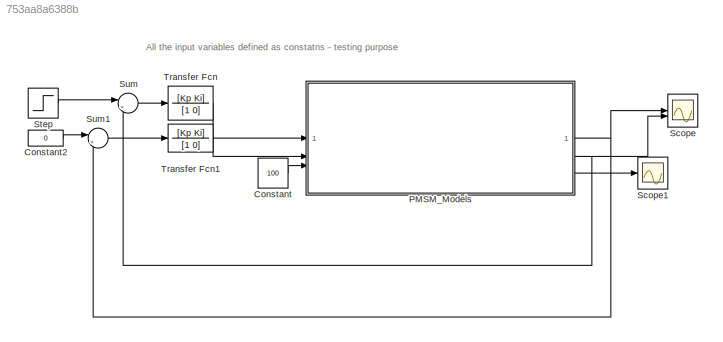
MODEL slx_753aa8a6388b
KIND model
CONFIG AbsTol = auto
CONFIG EnableMultiTasking = off
CONFIG FixedStep = 1e-4
CONFIG MaxStep = auto
CONFIG MinStep = auto
CONFIG RelTol = 1e-3
CONFIG SampleTimeConstraint = Unconstrained
CONFIG SolverName = ode4
CONFIG StartTime = 0.0
CONFIG StopTime = 2
BLOCK [Constant] Constant
  Value = 100
BLOCK [Constant] Constant2
  Value = 0
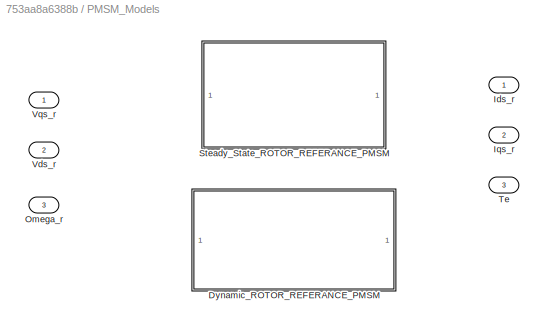
BLOCK [SubSystem] PMSM_Models
  Variant = on
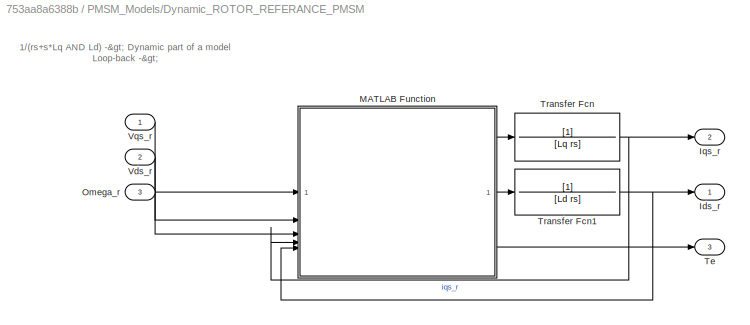
BLOCK [SubSystem] PMSM_Models/Dynamic_ROTOR_REFERANCE_PMSM
  VariantControl = Model==2
BLOCK [Outport] PMSM_Models/Dynamic_ROTOR_REFERANCE_PMSM/Ids_r
BLOCK [Outport] PMSM_Models/Dynamic_ROTOR_REFERANCE_PMSM/Iqs_r
  Port = 2
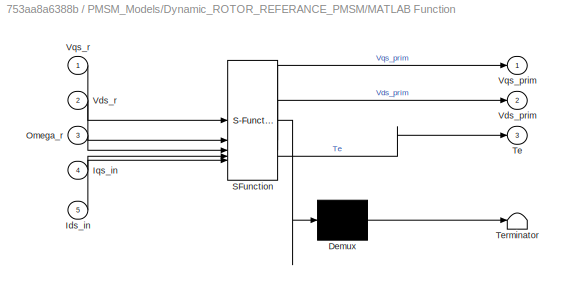
BLOCK [SubSystem] PMSM_Models/Dynamic_ROTOR_REFERANCE_PMSM/MATLAB Function
  ErrorFcn = Stateflow.Translate.translate
  PermitHierarchicalResolution = ExplicitOnly
  SFBlockType = MATLAB Function
  TreatAsAtomicUnit = on
BLOCK [Demux] PMSM_Models/Dynamic_ROTOR_REFERANCE_PMSM/MATLAB Function/ Demux 
  Outputs = 1
BLOCK [S-Function] PMSM_Models/Dynamic_ROTOR_REFERANCE_PMSM/MATLAB Function/ SFunction 
  EnableBusSupport = off
  FunctionName = sf_sfun
  PortCounts = [5 4]
  SFcnIsStateOwnerBlock = off
  SFunctionDeploymentMode = off
  Tag = Stateflow S-Function 2
BLOCK [Terminator] PMSM_Models/Dynamic_ROTOR_REFERANCE_PMSM/MATLAB Function/ Terminator 
BLOCK [Inport] PMSM_Models/Dynamic_ROTOR_REFERANCE_PMSM/MATLAB Function/Ids_in
  Port = 5
BLOCK [Inport] PMSM_Models/Dynamic_ROTOR_REFERANCE_PMSM/MATLAB Function/Iqs_in
  Port = 4
BLOCK [Inport] PMSM_Models/Dynamic_ROTOR_REFERANCE_PMSM/MATLAB Function/Omega_r
  Port = 3
BLOCK [Outport] PMSM_Models/Dynamic_ROTOR_REFERANCE_PMSM/MATLAB Function/Te
  Port = 3
BLOCK [Outport] PMSM_Models/Dynamic_ROTOR_REFERANCE_PMSM/MATLAB Function/Vds_prim
  Port = 2
BLOCK [Inport] PMSM_Models/Dynamic_ROTOR_REFERANCE_PMSM/MATLAB Function/Vds_r
  Port = 2
BLOCK [Outport] PMSM_Models/Dynamic_ROTOR_REFERANCE_PMSM/MATLAB Function/Vqs_prim
BLOCK [Inport] PMSM_Models/Dynamic_ROTOR_REFERANCE_PMSM/MATLAB Function/Vqs_r
BLOCK [Inport] PMSM_Models/Dynamic_ROTOR_REFERANCE_PMSM/Omega_r
  Port = 3
BLOCK [Outport] PMSM_Models/Dynamic_ROTOR_REFERANCE_PMSM/Te
  Port = 3
BLOCK [TransferFcn] PMSM_Models/Dynamic_ROTOR_REFERANCE_PMSM/Transfer Fcn
  Denominator = [Lq rs]
BLOCK [TransferFcn] PMSM_Models/Dynamic_ROTOR_REFERANCE_PMSM/Transfer Fcn1
  Denominator = [Ld rs]
BLOCK [Inport] PMSM_Models/Dynamic_ROTOR_REFERANCE_PMSM/Vds_r
  Port = 2
BLOCK [Inport] PMSM_Models/Dynamic_ROTOR_REFERANCE_PMSM/Vqs_r
BLOCK [Outport] PMSM_Models/Ids_r
BLOCK [Outport] PMSM_Models/Iqs_r
  Port = 2
BLOCK [Inport] PMSM_Models/Omega_r
  Port = 3
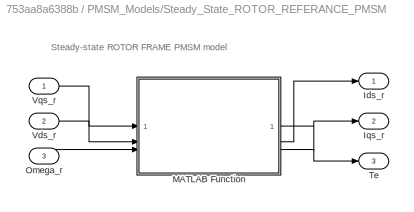
BLOCK [SubSystem] PMSM_Models/Steady_State_ROTOR_REFERANCE_PMSM
  VariantControl = Model==1
BLOCK [Outport] PMSM_Models/Steady_State_ROTOR_REFERANCE_PMSM/Ids_r
BLOCK [Outport] PMSM_Models/Steady_State_ROTOR_REFERANCE_PMSM/Iqs_r
  Port = 2
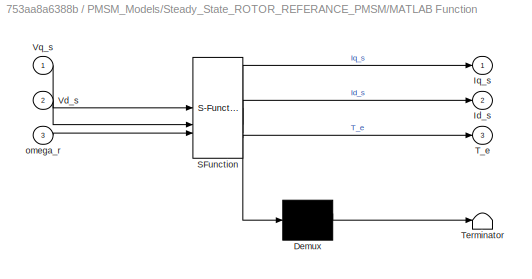
BLOCK [SubSystem] PMSM_Models/Steady_State_ROTOR_REFERANCE_PMSM/MATLAB Function
  ErrorFcn = Stateflow.Translate.translate
  PermitHierarchicalResolution = ExplicitOnly
  SFBlockType = MATLAB Function
  TreatAsAtomicUnit = on
BLOCK [Demux] PMSM_Models/Steady_State_ROTOR_REFERANCE_PMSM/MATLAB Function/ Demux 
  Outputs = 1
BLOCK [S-Function] PMSM_Models/Steady_State_ROTOR_REFERANCE_PMSM/MATLAB Function/ SFunction 
  EnableBusSupport = on
  FunctionName = sf_sfun
  PortCounts = [3 4]
  SFcnIsStateOwnerBlock = off
  SFunctionDeploymentMode = off
  Tag = Stateflow S-Function 4
BLOCK [Terminator] PMSM_Models/Steady_State_ROTOR_REFERANCE_PMSM/MATLAB Function/ Terminator 
BLOCK [Outport] PMSM_Models/Steady_State_ROTOR_REFERANCE_PMSM/MATLAB Function/Id_s
  Port = 2
BLOCK [Outport] PMSM_Models/Steady_State_ROTOR_REFERANCE_PMSM/MATLAB Function/Iq_s
BLOCK [Outport] PMSM_Models/Steady_State_ROTOR_REFERANCE_PMSM/MATLAB Function/T_e
  Port = 3
BLOCK [Inport] PMSM_Models/Steady_State_ROTOR_REFERANCE_PMSM/MATLAB Function/Vd_s
  Port = 2
BLOCK [Inport] PMSM_Models/Steady_State_ROTOR_REFERANCE_PMSM/MATLAB Function/Vq_s
BLOCK [Inport] PMSM_Models/Steady_State_ROTOR_REFERANCE_PMSM/MATLAB Function/omega_r
  Port = 3
BLOCK [Inport] PMSM_Models/Steady_State_ROTOR_REFERANCE_PMSM/Omega_r
  Port = 3
BLOCK [Outport] PMSM_Models/Steady_State_ROTOR_REFERANCE_PMSM/Te
  Port = 3
BLOCK [Inport] PMSM_Models/Steady_State_ROTOR_REFERANCE_PMSM/Vds_r
  Port = 2
BLOCK [Inport] PMSM_Models/Steady_State_ROTOR_REFERANCE_PMSM/Vqs_r
BLOCK [Outport] PMSM_Models/Te
  Port = 3
BLOCK [Inport] PMSM_Models/Vds_r
  Port = 2
BLOCK [Inport] PMSM_Models/Vqs_r
BLOCK [Scope] Scope
  Floating = off
  NumInputPorts = 2
  ScopeSpecificationString = Simulink.scopes.TimeScopeBlockCfg('CurrentConfiguration', extmgr.ConfigurationSet(extmgr.Configuration('Core','General UI',true),extmgr.Configuration('Core','Source UI',true),extmgr.Configuration('Sources','WiredSimulink',true),extmgr.Configuration('Visuals','Time Domain',true,'SerializedDisplays',{struct('MinYLimReal','-5.2957','MaxYLimReal','2.81063','YLabelReal','','MinYLimMag','0.00000','MaxYL...<+1408ch>
BLOCK [Scope] Scope1
  Floating = off
  NumInputPorts = 1
  ScopeSpecificationString = Simulink.scopes.TimeScopeBlockCfg('CurrentConfiguration', extmgr.ConfigurationSet(extmgr.Configuration('Core','General UI',true),extmgr.Configuration('Core','Source UI',true),extmgr.Configuration('Sources','WiredSimulink',true,'DataLoggingVariableName','ScopeData1'),extmgr.Configuration('Visuals','Time Domain',true,'SerializedDisplays',{struct('MinYLimReal','-12774753157502704959153016988736193571...<+1898ch>
BLOCK [Step] Step
  After = 2
  SampleTime = 0
BLOCK [Sum] Sum
  Inputs = |+-
BLOCK [Sum] Sum1
  Inputs = |+-
BLOCK [TransferFcn] Transfer Fcn
  Denominator = [1 0]
  Numerator = [Kp Ki]
BLOCK [TransferFcn] Transfer Fcn1
  Denominator = [1 0]
  Numerator = [Kp Ki]
ANNOTATION (root): All the input variables defined as constatns - testing purpose
ANNOTATION PMSM_Models/Dynamic_ROTOR_REFERANCE_PMSM: 1/(rs+s*Lq AND Ld) -> Dynamic part of a model Loop-back ->
ANNOTATION PMSM_Models/Steady_State_ROTOR_REFERANCE_PMSM: Steady-state ROTOR FRAME PMSM model
LINE Constant2:1 -> Sum1:1
LINE Constant:1 -> PMSM_Models:3
LINE PMSM_Models/Dynamic_ROTOR_REFERANCE_PMSM/MATLAB Function:1 -> PMSM_Models/Dynamic_ROTOR_REFERANCE_PMSM/Transfer Fcn:1
LINE PMSM_Models/Dynamic_ROTOR_REFERANCE_PMSM/MATLAB Function:2 -> PMSM_Models/Dynamic_ROTOR_REFERANCE_PMSM/Transfer Fcn1:1
LINE PMSM_Models/Dynamic_ROTOR_REFERANCE_PMSM/MATLAB Function:3 -> PMSM_Models/Dynamic_ROTOR_REFERANCE_PMSM/Te:1
LINE PMSM_Models/Dynamic_ROTOR_REFERANCE_PMSM/Omega_r:1 -> PMSM_Models/Dynamic_ROTOR_REFERANCE_PMSM/MATLAB Function:3
NET PMSM_Models/Dynamic_ROTOR_REFERANCE_PMSM/Transfer Fcn1:1 -> PMSM_Models/Dynamic_ROTOR_REFERANCE_PMSM/Ids_r:1, PMSM_Models/Dynamic_ROTOR_REFERANCE_PMSM/MATLAB Function:5
NET PMSM_Models/Dynamic_ROTOR_REFERANCE_PMSM/Transfer Fcn:1 -> PMSM_Models/Dynamic_ROTOR_REFERANCE_PMSM/Iqs_r:1, PMSM_Models/Dynamic_ROTOR_REFERANCE_PMSM/MATLAB Function:4
LINE PMSM_Models/Dynamic_ROTOR_REFERANCE_PMSM/Vds_r:1 -> PMSM_Models/Dynamic_ROTOR_REFERANCE_PMSM/MATLAB Function:2
LINE PMSM_Models/Dynamic_ROTOR_REFERANCE_PMSM/Vqs_r:1 -> PMSM_Models/Dynamic_ROTOR_REFERANCE_PMSM/MATLAB Function:1
LINE PMSM_Models/Steady_State_ROTOR_REFERANCE_PMSM/MATLAB Function:1 -> PMSM_Models/Steady_State_ROTOR_REFERANCE_PMSM/Iqs_r:1
LINE PMSM_Models/Steady_State_ROTOR_REFERANCE_PMSM/MATLAB Function:2 -> PMSM_Models/Steady_State_ROTOR_REFERANCE_PMSM/Ids_r:1
LINE PMSM_Models/Steady_State_ROTOR_REFERANCE_PMSM/MATLAB Function:3 -> PMSM_Models/Steady_State_ROTOR_REFERANCE_PMSM/Te:1
LINE PMSM_Models/Steady_State_ROTOR_REFERANCE_PMSM/Omega_r:1 -> PMSM_Models/Steady_State_ROTOR_REFERANCE_PMSM/MATLAB Function:3
LINE PMSM_Models/Steady_State_ROTOR_REFERANCE_PMSM/Vds_r:1 -> PMSM_Models/Steady_State_ROTOR_REFERANCE_PMSM/MATLAB Function:2
LINE PMSM_Models/Steady_State_ROTOR_REFERANCE_PMSM/Vqs_r:1 -> PMSM_Models/Steady_State_ROTOR_REFERANCE_PMSM/MATLAB Function:1
NET PMSM_Models:1 -> Scope:1, Sum1:2
NET PMSM_Models:2 -> Scope:2, Sum:2
LINE PMSM_Models:3 -> Scope1:1
LINE Step:1 -> Sum:1
LINE Sum1:1 -> Transfer Fcn1:1
LINE Sum:1 -> Transfer Fcn:1
LINE Transfer Fcn1:1 -> PMSM_Models:2
LINE Transfer Fcn:1 -> PMSM_Models:1
note: NET lines group one-source signal fan-out (src -> all destinations, sorted); 1:1 wires keep LINE
CHART PMSM_Models/Dynamic_ROTOR_REFERANCE_PMSM/MATLAB Function states=1 transitions=1
  STATE_LABEL 'eML_blk_kernel()'
  STATE_LABEL 'SCRIPT:\nfunction [Vqs_prim, Vds_prim, Te] = fcn( Vqs_r, Vds_r, Omega_r, Iqs_in, Ids_in)\n\n%Physical constans of the PMSM - steady state \nrs = 0.2;\nLq = 300e-6;\nLd = 300e-6;\n\nLambda_m_r = 0.01; %back EMF coeficient\nP = 2; %Poles (one pole pair)\n\nVqs_prim = (Vqs_r - Omega_r*Lambda_m_r-Omega_r*Ld*Ids_in);\nVds_prim = (Vds_r + Omega_r*Lq*Iqs_in);\n\nTe = (3/2)*(P/2)*(Lambda_m_r*Iqs_in +(Ld-Lq)*Iqs_in*Ids_...<+11ch>'
CHART PMSM_Models/Steady_State_ROTOR_REFERANCE_PMSM/MATLAB Function states=1 transitions=1
  STATE_LABEL 'eML_blk_kernel()'
  STATE_LABEL 'SCRIPT:\nfunction [Iq_s, Id_s, T_e] = fcn(Vq_s, Vd_s, omega_r)\n\n%Physical constans of the PMSM - steady state\nrs = 0.2;\nLq = 300e-6;\nLd = 300e-6;\nLambda_m_r = 0.01;\nP = 2; %Poles (one pole pair)\n\n\n%Evaluation of DC currents for d and q axis and torque \nK1 = ((rs^2)+(omega_r^2)*Lq*Ld);\n\nIq_s = (rs/K1)*(Vq_s-omega_r*Lambda_m_r-(omega_r*Ld/rs)*Vd_s);\nId_s = (1/K1)*(rs*Vd_s+omega_r*Lq*Vq_s-(omega_r^2)*...<+77ch>'
CHART  states=0 transitions=0
CHART  states=0 transitions=0
